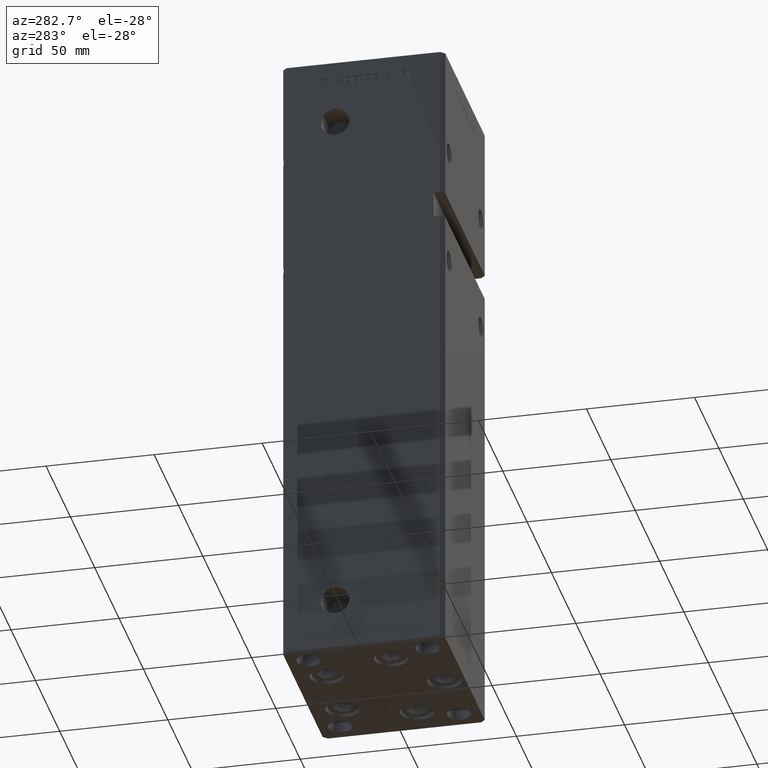
[diagram: clean part render]
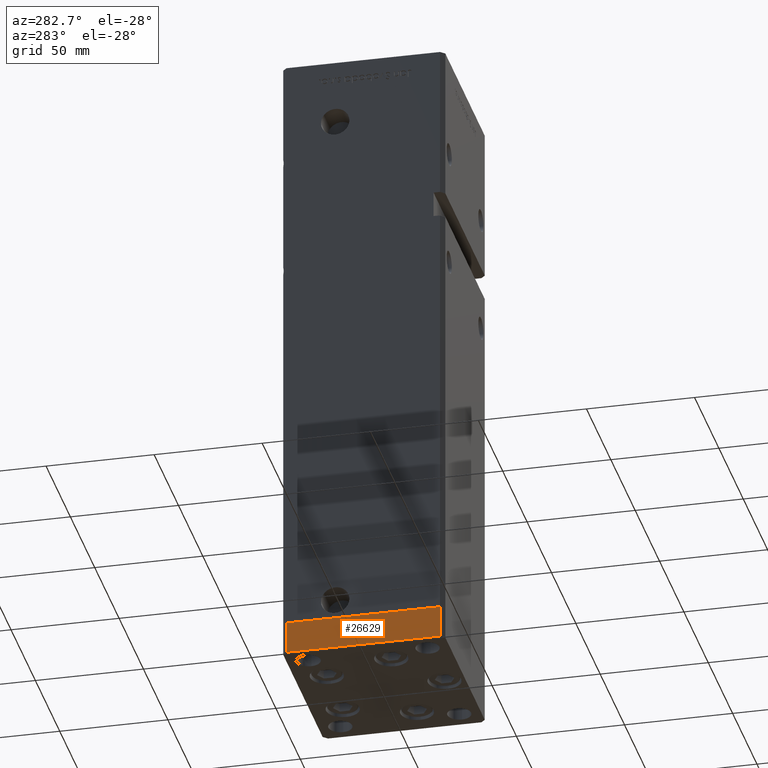
[diagram: same view with one face highlighted and labeled with its STEP entity id]
A machine part, auxiliary view. The second image highlights one B-rep face of the part: STEP entity #26629.
In plain terms, the highlighted planar face has unit normal (-1, -0, 0).
Its self-contained STEP definition (entity closure, byte-faithful):
#72 = VECTOR ( 'NONE', #30770, 1000.000000000000000 ) ;
#2286 = CARTESIAN_POINT ( 'NONE',  ( 42.50000000000000711, -35.50000000000000000, 0.000000000000000000 ) ) ;
#4952 = DIRECTION ( 'NONE',  ( -1.172770800660376741E-15, 1.000000000000000000, 0.000000000000000000 ) ) ;
#5348 = VERTEX_POINT ( 'NONE', #9749 ) ;
#5472 = CARTESIAN_POINT ( 'NONE',  ( 42.50000000000000711, -35.50000000000000000, -15.00000000000000000 ) ) ;
#5970 = DIRECTION ( 'NONE',  ( 1.000000000000000000, 1.172770800660376741E-15, -0.000000000000000000 ) ) ;
#6300 = LINE ( 'NONE', #2286, #72 ) ;
#6799 = EDGE_CURVE ( 'NONE', #22315, #5348, #35777, .T. ) ;
#9726 = DIRECTION ( 'NONE',  ( -1.172770800660376741E-15, 1.000000000000000000, 0.000000000000000000 ) ) ;
#9749 = CARTESIAN_POINT ( 'NONE',  ( 42.49999999999992895, 35.50000000000000000, 0.000000000000000000 ) ) ;
#10991 = VERTEX_POINT ( 'NONE', #14457 ) ;
#13305 = LINE ( 'NONE', #41792, #24411 ) ;
#13497 = VECTOR ( 'NONE', #4952, 1000.000000000000000 ) ;
#14457 = CARTESIAN_POINT ( 'NONE',  ( 42.50000000000000711, -35.50000000000000000, -15.00000000000000000 ) ) ;
#14856 = CARTESIAN_POINT ( 'NONE',  ( 42.50000000000000711, -35.50000000000000000, -15.00000000000000000 ) ) ;
#15790 = EDGE_LOOP ( 'NONE', ( #40344, #31589, #31161, #25075 ) ) ;
#22315 = VERTEX_POINT ( 'NONE', #50996 ) ;
#24411 = VECTOR ( 'NONE', #46076, 1000.000000000000000 ) ;
#25075 = ORIENTED_EDGE ( 'NONE', *, *, #6799, .T. ) ;
#26629 = ADVANCED_FACE ( 'NONE', ( #46287 ), #51393, .T. ) ;
#27017 = VECTOR ( 'NONE', #47874, 1000.000000000000000 ) ;
#30770 = DIRECTION ( 'NONE',  ( -1.172770800660376741E-15, 1.000000000000000000, 0.000000000000000000 ) ) ;
#31161 = ORIENTED_EDGE ( 'NONE', *, *, #33216, .T. ) ;
#31589 = ORIENTED_EDGE ( 'NONE', *, *, #51915, .F. ) ;
#33216 = EDGE_CURVE ( 'NONE', #10991, #22315, #41777, .T. ) ;
#35777 = LINE ( 'NONE', #39276, #27017 ) ;
#39213 = AXIS2_PLACEMENT_3D ( 'NONE', #14856, #5970, #9726 ) ;
#39276 = CARTESIAN_POINT ( 'NONE',  ( 42.49999999999992895, 35.50000000000000000, -15.00000000000000000 ) ) ;
#40344 = ORIENTED_EDGE ( 'NONE', *, *, #42229, .F. ) ;
#40822 = VERTEX_POINT ( 'NONE', #50118 ) ;
#41777 = LINE ( 'NONE', #5472, #13497 ) ;
#41792 = CARTESIAN_POINT ( 'NONE',  ( 42.50000000000000711, -35.50000000000000000, -15.00000000000000000 ) ) ;
#42229 = EDGE_CURVE ( 'NONE', #40822, #5348, #6300, .T. ) ;
#46076 = DIRECTION ( 'NONE',  ( 0.000000000000000000, 0.000000000000000000, 1.000000000000000000 ) ) ;
#46287 = FACE_OUTER_BOUND ( 'NONE', #15790, .T. ) ;
#47874 = DIRECTION ( 'NONE',  ( 0.000000000000000000, 0.000000000000000000, 1.000000000000000000 ) ) ;
#50118 = CARTESIAN_POINT ( 'NONE',  ( 42.50000000000000711, -35.50000000000000000, 0.000000000000000000 ) ) ;
#50996 = CARTESIAN_POINT ( 'NONE',  ( 42.49999999999992895, 35.50000000000000000, -15.00000000000000000 ) ) ;
#51393 = PLANE ( 'NONE',  #39213 ) ;
#51915 = EDGE_CURVE ( 'NONE', #10991, #40822, #13305, .T. ) ;